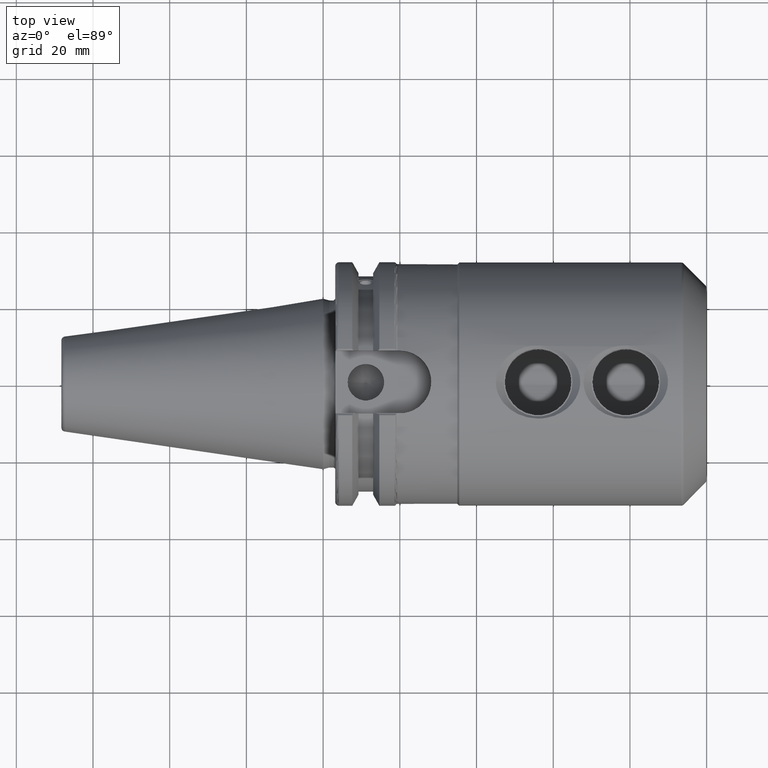
[diagram: clean part render]
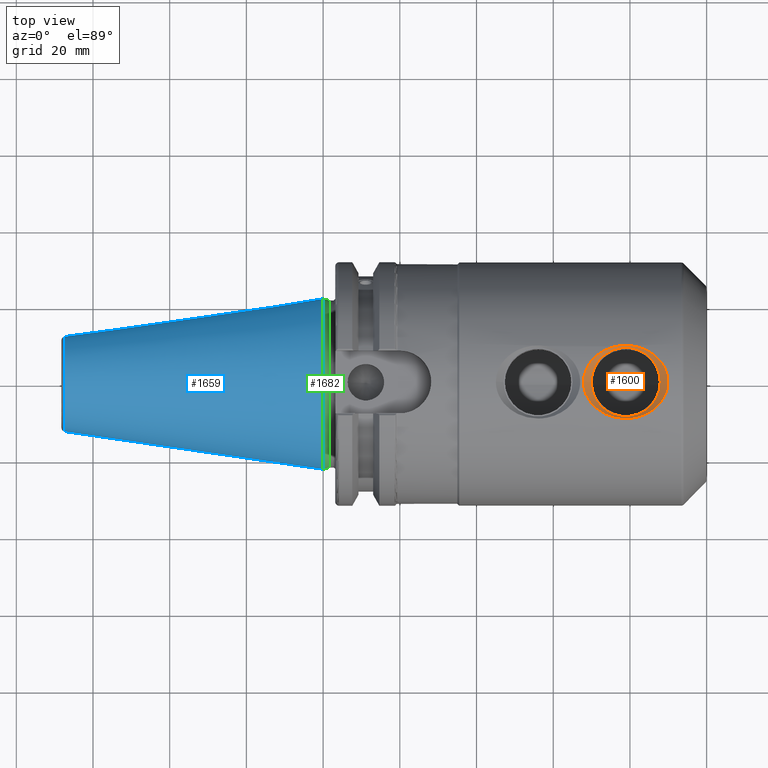
[diagram: same view with three faces highlighted in distinct colors, each labeled with its STEP entity id]
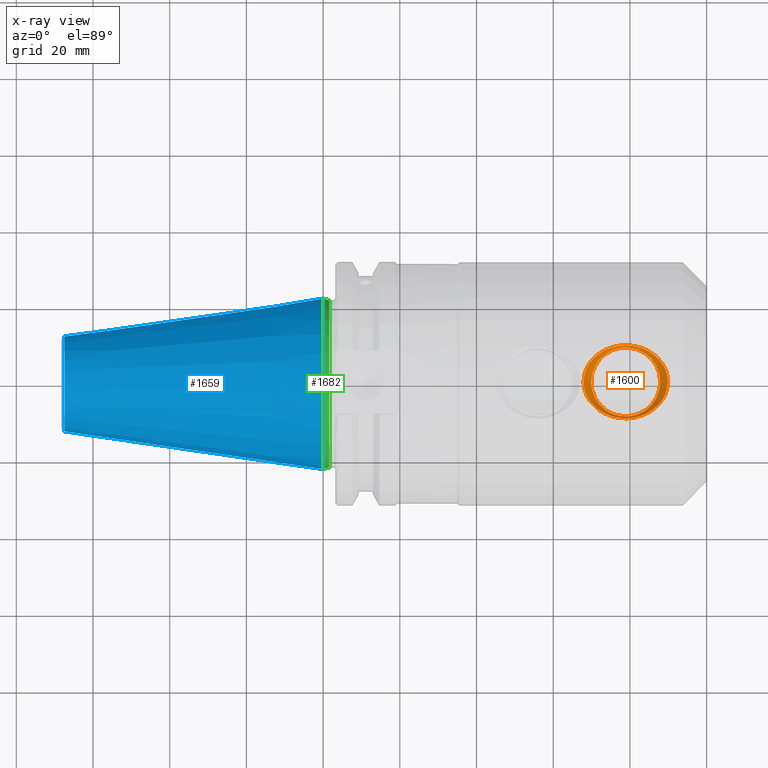
[diagram: x-ray of the same camera — body ghosted, the three highlighted faces saturated]
A machine part, top view with three faces highlighted in distinct colors.
The next image is the same camera in x-ray (body ghosted, the three faces saturated) — at least one of them is partly hidden behind the body in this view.
Their STEP definitions:

[orange] entity #1600 — the highlighted conical surface has half-angle 45 deg.
#104=B_SPLINE_CURVE_WITH_KNOTS('',3,(#2531,#2532,#2533,#2534,#2535,#2536,
#2537,#2538,#2539,#2540),.UNSPECIFIED.,.F.,.F.,(4,2,2,2,4),(0.,0.382609666048451,
0.765219332096902,1.16167647474773,1.55813361739856),.UNSPECIFIED.);
#105=B_SPLINE_CURVE_WITH_KNOTS('',3,(#2541,#2542,#2543,#2544,#2545,#2546,
#2547,#2548,#2549,#2550,#2551,#2552,#2553,#2554,#2555,#2556,#2557,#2558,
#2559,#2560,#2561,#2562,#2563,#2564,#2565,#2566),.UNSPECIFIED.,.F.,.F.,
(4,2,2,2,2,2,2,2,2,2,2,2,4),(1.55813361739856,1.95459076004938,2.35104790270021,
2.73365756874866,3.11626723479711,3.49887690084556,3.88148656689401,4.27794370954484,
4.67440085219567,5.07085799484649,5.46731513749732,5.84992480354577,6.23253446959422),
 .UNSPECIFIED.);
#207=FACE_OUTER_BOUND('',#305,.T.);
#305=EDGE_LOOP('',(#1119,#1120,#1121,#1122,#1123));
#416=LINE('',#2529,#506);
#506=VECTOR('',#1950,10.5);
#595=CIRCLE('',#1726,8.99999999999999);
#682=VERTEX_POINT('',#2525);
#683=VERTEX_POINT('',#2528);
#684=VERTEX_POINT('',#2530);
#853=EDGE_CURVE('',#682,#682,#595,.T.);
#854=EDGE_CURVE('',#682,#683,#416,.T.);
#855=EDGE_CURVE('',#684,#683,#104,.T.);
#856=EDGE_CURVE('',#683,#684,#105,.T.);
#1119=ORIENTED_EDGE('',*,*,#853,.F.);
#1120=ORIENTED_EDGE('',*,*,#854,.T.);
#1121=ORIENTED_EDGE('',*,*,#855,.F.);
#1122=ORIENTED_EDGE('',*,*,#856,.F.);
#1123=ORIENTED_EDGE('',*,*,#854,.F.);
#1577=CONICAL_SURFACE('',#1727,10.5,0.785398163397447);
#1600=ADVANCED_FACE('',(#207),#1577,.F.);
#1726=AXIS2_PLACEMENT_3D('',#2526,#1946,#1947);
#1727=AXIS2_PLACEMENT_3D('',#2527,#1948,#1949);
#1946=DIRECTION('center_axis',(1.29071712913177E-16,0.,1.));
#1947=DIRECTION('ref_axis',(1.,0.,-1.29071712913177E-16));
#1948=DIRECTION('center_axis',(1.29071712913177E-16,0.,1.));
#1949=DIRECTION('ref_axis',(1.,0.,0.));
#1950=DIRECTION('',(-0.707106781186546,-8.65956056235492E-17,0.707106781186549));
#2525=CARTESIAN_POINT('',(69.9,-1.10218211923262E-15,29.75));
#2526=CARTESIAN_POINT('Origin',(78.9,0.,29.75));
#2527=CARTESIAN_POINT('Origin',(78.9,0.,31.25));
#2528=CARTESIAN_POINT('',(67.9,-1.34711147906209E-15,31.75));
#2529=CARTESIAN_POINT('',(68.4,-1.28587913910472E-15,31.25));
#2530=CARTESIAN_POINT('',(78.9,-9.53456114533918,30.2845611453392));
#2531=CARTESIAN_POINT('Ctrl Pts',(78.9,-9.53456114533918,30.2845611453392));
#2532=CARTESIAN_POINT('Ctrl Pts',(77.6246344465052,-9.53456114533918,30.2845611453392));
#2533=CARTESIAN_POINT('Ctrl Pts',(76.2521700391031,-9.32850350560695,30.3520104956337));
#2534=CARTESIAN_POINT('Ctrl Pts',(73.6736178550724,-8.46342964764243,30.6045077339259));
#2535=CARTESIAN_POINT('Ctrl Pts',(72.4671785225032,-7.80453714232141,30.7863791844256));
#2536=CARTESIAN_POINT('Ctrl Pts',(70.4544213504417,-6.20420516588416,31.1491194381814));
#2537=CARTESIAN_POINT('Ctrl Pts',(69.5181894012687,-5.13337183259807,31.3563846001761));
#2538=CARTESIAN_POINT('Ctrl Pts',(68.2398350046399,-2.6929575256863,31.6594750605135));
#2539=CARTESIAN_POINT('Ctrl Pts',(67.9,-1.32152380883609,31.75));
#2540=CARTESIAN_POINT('Ctrl Pts',(67.9,0.,31.75));
#2541=CARTESIAN_POINT('Ctrl Pts',(67.9,-8.32667268468867E-16,31.75));
#2542=CARTESIAN_POINT('Ctrl Pts',(67.9,1.32152380883609,31.75));
#2543=CARTESIAN_POINT('Ctrl Pts',(68.2398350046399,2.6929575256863,31.6594750605135));
#2544=CARTESIAN_POINT('Ctrl Pts',(69.5181894012687,5.13337183259807,31.3563846001761));
#2545=CARTESIAN_POINT('Ctrl Pts',(70.4544213504417,6.20420516588416,31.1491194381814));
#2546=CARTESIAN_POINT('Ctrl Pts',(72.4671785225032,7.80453714232141,30.7863791844256));
#2547=CARTESIAN_POINT('Ctrl Pts',(73.6736178550724,8.46342964764243,30.6045077339259));
#2548=CARTESIAN_POINT('Ctrl Pts',(76.2521700391031,9.32850350560695,30.3520104956337));
#2549=CARTESIAN_POINT('Ctrl Pts',(77.6246344465052,9.53456114533918,30.2845611453392));
#2550=CARTESIAN_POINT('Ctrl Pts',(80.1753655534948,9.53456114533918,30.2845611453392));
#2551=CARTESIAN_POINT('Ctrl Pts',(81.5478299608969,9.32850350560695,30.3520104956337));
#2552=CARTESIAN_POINT('Ctrl Pts',(84.1263821449276,8.46342964764242,30.6045077339259));
#2553=CARTESIAN_POINT('Ctrl Pts',(85.3328214774968,7.80453714232141,30.7863791844256));
#2554=CARTESIAN_POINT('Ctrl Pts',(87.3455786495583,6.20420516588417,31.1491194381814));
#2555=CARTESIAN_POINT('Ctrl Pts',(88.2818105987313,5.13337183259808,31.3563846001761));
#2556=CARTESIAN_POINT('Ctrl Pts',(89.56016499536,2.69295752568631,31.6594750605135));
#2557=CARTESIAN_POINT('Ctrl Pts',(89.9,1.32152380883609,31.75));
#2558=CARTESIAN_POINT('Ctrl Pts',(89.9,-1.32152380883609,31.75));
#2559=CARTESIAN_POINT('Ctrl Pts',(89.56016499536,-2.69295752568629,31.6594750605135));
#2560=CARTESIAN_POINT('Ctrl Pts',(88.2818105987313,-5.13337183259806,31.3563846001761));
#2561=CARTESIAN_POINT('Ctrl Pts',(87.3455786495583,-6.20420516588416,31.1491194381814));
#2562=CARTESIAN_POINT('Ctrl Pts',(85.3328214774968,-7.80453714232141,30.7863791844256));
#2563=CARTESIAN_POINT('Ctrl Pts',(84.1263821449276,-8.46342964764242,30.6045077339259));
#2564=CARTESIAN_POINT('Ctrl Pts',(81.5478299608969,-9.32850350560694,30.3520104956337));
#2565=CARTESIAN_POINT('Ctrl Pts',(80.1753655534948,-9.53456114533918,30.2845611453392));
#2566=CARTESIAN_POINT('Ctrl Pts',(78.9,-9.53456114533918,30.2845611453392));

[blue] entity #1659 — the highlighted conical surface has half-angle 8.297 deg.
#266=FACE_OUTER_BOUND('',#381,.T.);
#381=EDGE_LOOP('',(#1455,#1456,#1457,#1458,#1459));
#486=LINE('',#3316,#576);
#576=VECTOR('',#2290,17.2484375);
#648=CIRCLE('',#1855,12.3966635780937);
#649=CIRCLE('',#1856,12.3966635780937);
#653=CIRCLE('',#1862,22.225);
#819=VERTEX_POINT('',#3303);
#820=VERTEX_POINT('',#3304);
#823=VERTEX_POINT('',#3314);
#1047=EDGE_CURVE('',#819,#820,#648,.T.);
#1048=EDGE_CURVE('',#820,#819,#649,.T.);
#1052=EDGE_CURVE('',#823,#823,#653,.T.);
#1053=EDGE_CURVE('',#823,#820,#486,.T.);
#1455=ORIENTED_EDGE('',*,*,#1052,.F.);
#1456=ORIENTED_EDGE('',*,*,#1053,.T.);
#1457=ORIENTED_EDGE('',*,*,#1047,.F.);
#1458=ORIENTED_EDGE('',*,*,#1048,.F.);
#1459=ORIENTED_EDGE('',*,*,#1053,.F.);
#1584=CONICAL_SURFACE('',#1861,17.2484375,0.144812498238939);
#1659=ADVANCED_FACE('',(#266),#1584,.T.);
#1855=AXIS2_PLACEMENT_3D('',#3305,#2274,#2275);
#1856=AXIS2_PLACEMENT_3D('',#3306,#2276,#2277);
#1861=AXIS2_PLACEMENT_3D('',#3313,#2286,#2287);
#1862=AXIS2_PLACEMENT_3D('',#3315,#2288,#2289);
#2274=DIRECTION('center_axis',(-1.,0.,0.));
#2275=DIRECTION('ref_axis',(0.,-1.,3.06161699786838E-17));
#2276=DIRECTION('center_axis',(-1.,0.,0.));
#2277=DIRECTION('ref_axis',(0.,-1.,3.06161699786838E-17));
#2286=DIRECTION('center_axis',(1.,0.,0.));
#2287=DIRECTION('ref_axis',(0.,1.,0.));
#2288=DIRECTION('center_axis',(1.,0.,0.));
#2289=DIRECTION('ref_axis',(0.,0.,-1.));
#2290=DIRECTION('',(-0.989532981063282,0.144306893071729,1.76724974695192E-17));
#3303=CARTESIAN_POINT('',(-67.3943068930717,-1.5181534371019E-15,12.3966635780937));
#3304=CARTESIAN_POINT('',(-67.3943068930718,-12.3966635780937,-1.5181534371019E-15));
#3305=CARTESIAN_POINT('Origin',(-67.3943068930717,0.,-1.89769179637738E-15));
#3306=CARTESIAN_POINT('Origin',(-67.3943068930717,0.,-1.89769179637738E-15));
#3313=CARTESIAN_POINT('Origin',(-34.125,0.,0.));
#3314=CARTESIAN_POINT('',(0.,-22.225,-2.72177751110499E-15));
#3315=CARTESIAN_POINT('Origin',(0.,0.,0.));
#3316=CARTESIAN_POINT('',(-34.125,-17.2484375,-2.11232437746682E-15));

[green] entity #1682 — the highlighted conical surface has half-angle 15 deg.
#289=FACE_OUTER_BOUND('',#405,.T.);
#405=EDGE_LOOP('',(#1568,#1569,#1570,#1571));
#497=LINE('',#3373,#587);
#587=VECTOR('',#2369,22.0125);
#644=CIRCLE('',#1844,21.8);
#653=CIRCLE('',#1862,22.225);
#809=VERTEX_POINT('',#3230);
#823=VERTEX_POINT('',#3314);
#1031=EDGE_CURVE('',#809,#809,#644,.T.);
#1052=EDGE_CURVE('',#823,#823,#653,.T.);
#1077=EDGE_CURVE('',#809,#823,#497,.T.);
#1568=ORIENTED_EDGE('',*,*,#1031,.F.);
#1569=ORIENTED_EDGE('',*,*,#1077,.T.);
#1570=ORIENTED_EDGE('',*,*,#1052,.T.);
#1571=ORIENTED_EDGE('',*,*,#1077,.F.);
#1589=CONICAL_SURFACE('',#1896,22.0125,0.261799387799148);
#1682=ADVANCED_FACE('',(#289),#1589,.T.);
#1844=AXIS2_PLACEMENT_3D('',#3232,#2248,#2249);
#1862=AXIS2_PLACEMENT_3D('',#3315,#2288,#2289);
#1896=AXIS2_PLACEMENT_3D('',#3372,#2367,#2368);
#2248=DIRECTION('center_axis',(1.,0.,0.));
#2249=DIRECTION('ref_axis',(0.,0.,-1.));
#2288=DIRECTION('center_axis',(1.,0.,0.));
#2289=DIRECTION('ref_axis',(0.,0.,-1.));
#2367=DIRECTION('center_axis',(-1.,0.,0.));
#2368=DIRECTION('ref_axis',(0.,1.,0.));
#2369=DIRECTION('',(-0.965925826289069,-0.258819045102519,-3.16961915143175E-17));
#3230=CARTESIAN_POINT('',(1.58612159321676,-21.8,-2.66973002214123E-15));
#3232=CARTESIAN_POINT('Origin',(1.58612159321676,0.,0.));
#3314=CARTESIAN_POINT('',(0.,-22.225,-2.72177751110499E-15));
#3315=CARTESIAN_POINT('Origin',(0.,0.,0.));
#3372=CARTESIAN_POINT('Origin',(0.793060796608378,0.,0.));
#3373=CARTESIAN_POINT('',(0.793060796608378,-22.0125,-2.69575376662311E-15));